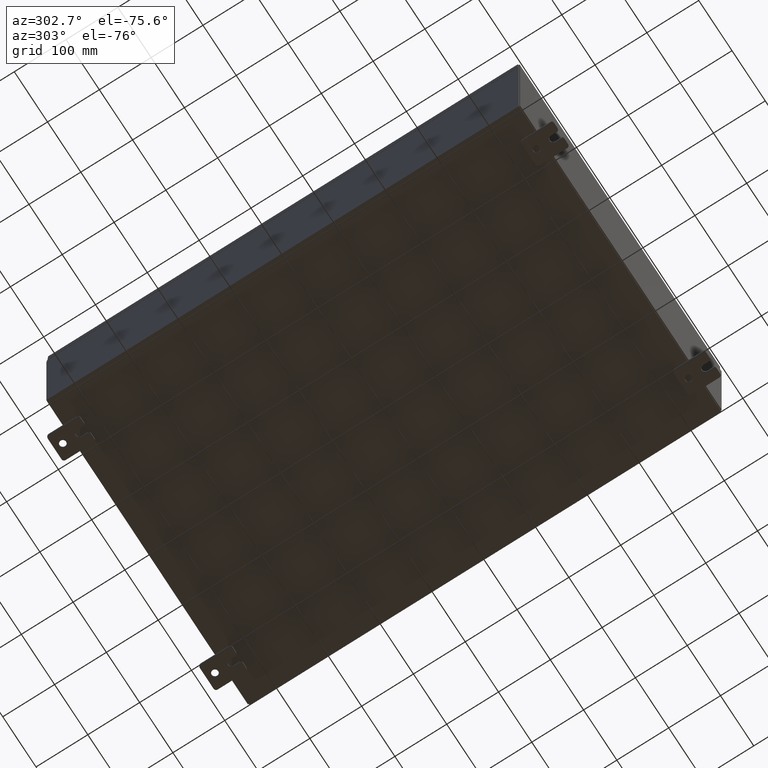
[diagram: clean part render]
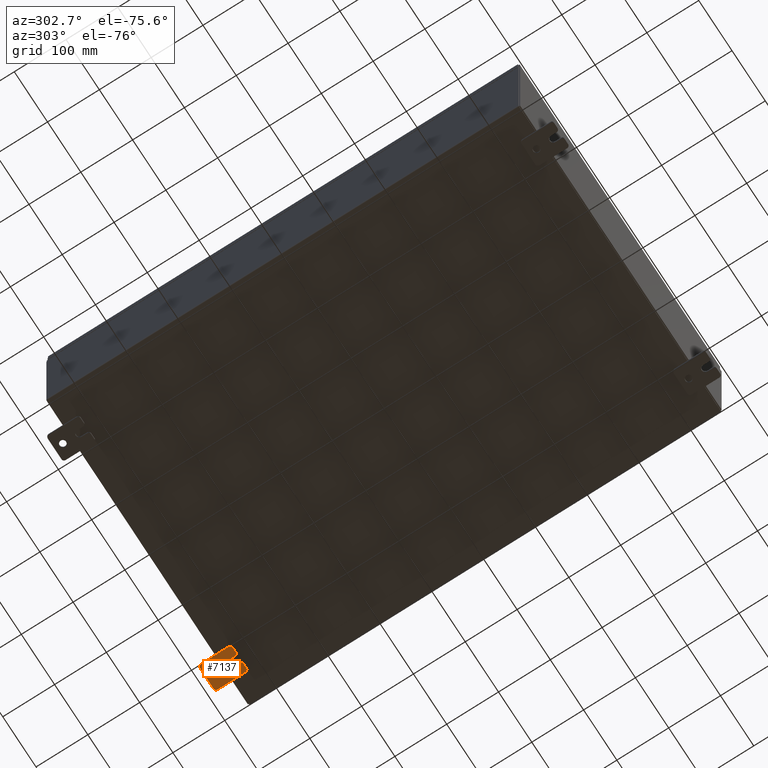
[diagram: same view with one face highlighted and labeled with its STEP entity id]
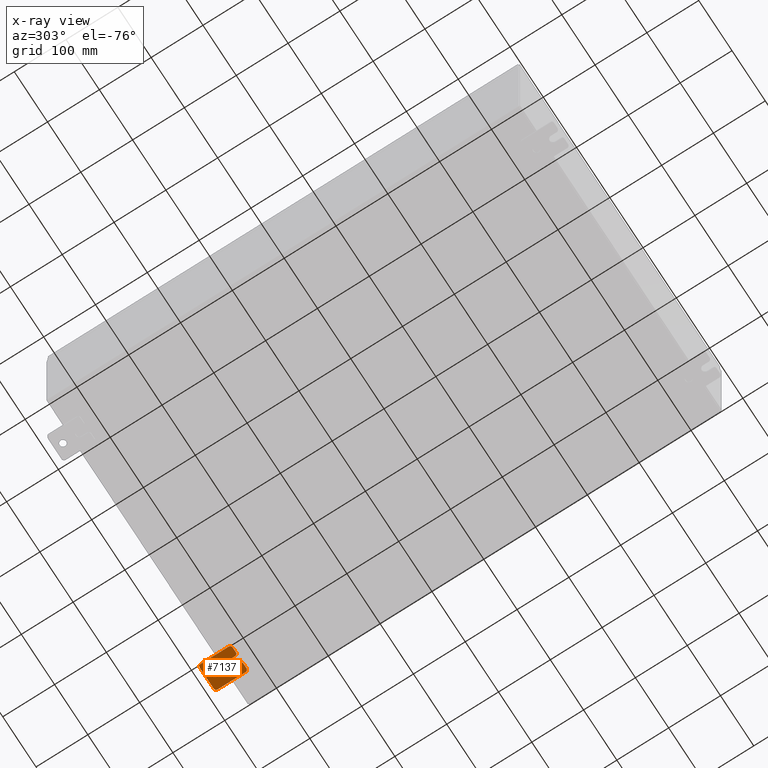
[diagram: x-ray of the same camera — body ghosted, the highlighted face saturated]
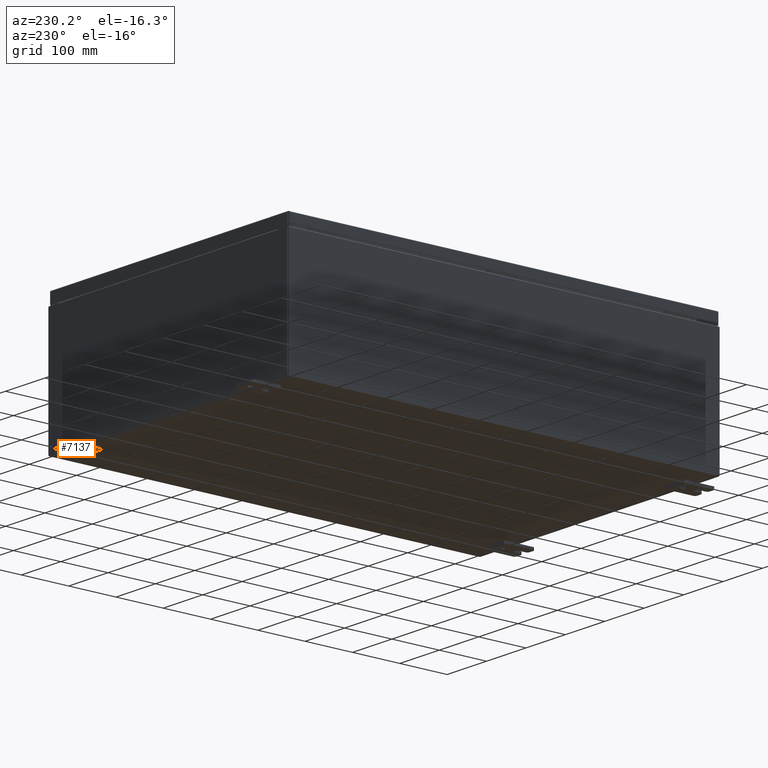
[diagram: same view with one face highlighted and labeled with its STEP entity id]
A machine part, auxiliary view. The second image highlights one B-rep face of the part: STEP entity #7137.
The next image is the same camera in x-ray: the body ghosted, the highlighted face saturated — about 0% of this face is hidden behind the body in this view.
A second angle (auxiliary view) of the same face is appended — the face is thin or edge-on in the first view.
In plain terms, the highlighted planar face has unit normal (0, 0, 1).
Its self-contained STEP definition (entity closure, byte-faithful):
#217 = DIRECTION ( 'NONE',  ( 6.556435184794182400E-016, 1.000000000000000000, 0.0000000000000000000 ) ) ;
#607 = DIRECTION ( 'NONE',  ( 1.000000000000000000, 0.0000000000000000000, -0.0000000000000000000 ) ) ;
#626 = VERTEX_POINT ( 'NONE', #44636 ) ;
#1798 = ORIENTED_EDGE ( 'NONE', *, *, #22774, .F. ) ;
#2174 = CARTESIAN_POINT ( 'NONE',  ( -0.1879999999999997800, -1.250000000000005300, -0.8100000000000047200 ) ) ;
#2263 = DIRECTION ( 'NONE',  ( -1.000000000000000000, -0.0000000000000000000, 0.0000000000000000000 ) ) ;
#2402 = EDGE_CURVE ( 'NONE', #27121, #22136, #28931, .T. ) ;
#2729 = ORIENTED_EDGE ( 'NONE', *, *, #52430, .F. ) ;
#2863 = VERTEX_POINT ( 'NONE', #41835 ) ;
#5062 = ORIENTED_EDGE ( 'NONE', *, *, #37063, .T. ) ;
#6317 = CARTESIAN_POINT ( 'NONE',  ( -0.1879999999999997800, 1.059999999999993600, -0.8100000000000089400 ) ) ;
#6627 = CARTESIAN_POINT ( 'NONE',  ( -0.1879999999999997800, 1.249999999999994700, -0.8100000000000092700 ) ) ;
#7137 = ADVANCED_FACE ( 'NONE', ( #42722, #44267 ), #30555, .F. ) ;
#7304 = CIRCLE ( 'NONE', #42403, 0.1900000000000011100 ) ;
#8931 = DIRECTION ( 'NONE',  ( 0.0000000000000000000, 1.000000000000000000, -1.639108796198558100E-015 ) ) ;
#9037 = AXIS2_PLACEMENT_3D ( 'NONE', #16358, #51111, #21371 ) ;
#9508 = VECTOR ( 'NONE', #29730, 39.37007874015748100 ) ;
#9675 = CARTESIAN_POINT ( 'NONE',  ( -0.1879999999999997800, 1.249999999999997600, 0.9999999999999951200 ) ) ;
#9783 = LINE ( 'NONE', #38781, #47941 ) ;
#10805 = EDGE_CURVE ( 'NONE', #13037, #27576, #47956, .T. ) ;
#10962 = EDGE_CURVE ( 'NONE', #27121, #19320, #43280, .T. ) ;
#11380 = DIRECTION ( 'NONE',  ( 0.0000000000000000000, 0.0000000000000000000, -1.000000000000000000 ) ) ;
#12677 = LINE ( 'NONE', #9675, #9508 ) ;
#13002 = CARTESIAN_POINT ( 'NONE',  ( -0.1879999999999997800, -1.060000000000003400, -0.4400000000000005000 ) ) ;
#13037 = VERTEX_POINT ( 'NONE', #39226 ) ;
#14175 = DIRECTION ( 'NONE',  ( 0.0000000000000000000, -1.639108796198553600E-015, -1.000000000000000000 ) ) ;
#15568 = EDGE_CURVE ( 'NONE', #626, #30605, #12677, .T. ) ;
#16358 = CARTESIAN_POINT ( 'NONE',  ( -0.1879999999999997800, -1.060000000000002100, 0.4400000000000016700 ) ) ;
#16526 = AXIS2_PLACEMENT_3D ( 'NONE', #13002, #47737, #17988 ) ;
#16765 = EDGE_CURVE ( 'NONE', #42605, #23969, #32182, .T. ) ;
#16906 = ORIENTED_EDGE ( 'NONE', *, *, #16765, .F. ) ;
#17520 = VERTEX_POINT ( 'NONE', #24576 ) ;
#17914 = CIRCLE ( 'NONE', #29296, 0.2499999999999999200 ) ;
#17988 = DIRECTION ( 'NONE',  ( 0.0000000000000000000, 0.0000000000000000000, -1.000000000000000000 ) ) ;
#19058 = EDGE_CURVE ( 'NONE', #27576, #42605, #24258, .T. ) ;
#19202 = DIRECTION ( 'NONE',  ( 1.000000000000000000, -0.0000000000000000000, -5.163192708025532000E-017 ) ) ;
#19320 = VERTEX_POINT ( 'NONE', #57489 ) ;
#19436 = CARTESIAN_POINT ( 'NONE',  ( -0.1880000000000010000, 0.6249999999999992200, -0.2499999999999999200 ) ) ;
#19855 = DIRECTION ( 'NONE',  ( -1.000000000000000000, -0.0000000000000000000, 0.0000000000000000000 ) ) ;
#19911 = DIRECTION ( 'NONE',  ( -1.000000000000000000, 6.523827964459549700E-016, 5.163192708025532000E-017 ) ) ;
#19969 = VECTOR ( 'NONE', #217, 39.37007874015748100 ) ;
#20112 = AXIS2_PLACEMENT_3D ( 'NONE', #49663, #19911, #54691 ) ;
#20428 = LINE ( 'NONE', #29178, #58577 ) ;
#20488 = VERTEX_POINT ( 'NONE', #2174 ) ;
#21368 = ORIENTED_EDGE ( 'NONE', *, *, #55863, .T. ) ;
#21371 = DIRECTION ( 'NONE',  ( 0.0000000000000000000, 0.0000000000000000000, -1.000000000000000000 ) ) ;
#22052 = CARTESIAN_POINT ( 'NONE',  ( -0.1879999999999997800, -1.060000000000001600, 0.8099999999999978300 ) ) ;
#22136 = VERTEX_POINT ( 'NONE', #33621 ) ;
#22774 = EDGE_CURVE ( 'NONE', #60226, #19320, #9783, .T. ) ;
#23236 = VECTOR ( 'NONE', #60317, 39.37007874015748100 ) ;
#23370 = AXIS2_PLACEMENT_3D ( 'NONE', #32190, #2263, #37172 ) ;
#23776 = ORIENTED_EDGE ( 'NONE', *, *, #15568, .F. ) ;
#23969 = VERTEX_POINT ( 'NONE', #47179 ) ;
#24124 = CARTESIAN_POINT ( 'NONE',  ( -0.1880000000000001900, -0.6249999999999992200, -0.2499999999999998600 ) ) ;
#24127 = DIRECTION ( 'NONE',  ( 0.0000000000000000000, 1.639108796198553600E-015, 1.000000000000000000 ) ) ;
#24258 = CIRCLE ( 'NONE', #20112, 0.2499999999999999200 ) ;
#24284 = CARTESIAN_POINT ( 'NONE',  ( -0.1879999999999997800, 1.249999999999994200, -1.000000000000010400 ) ) ;
#24576 = CARTESIAN_POINT ( 'NONE',  ( -0.1879999999999997800, -1.250000000000004700, -0.4400000000000002200 ) ) ;
#25369 = CARTESIAN_POINT ( 'NONE',  ( -0.1880000000000005800, -1.250000000000003800, 0.2500000000000005000 ) ) ;
#26884 = ORIENTED_EDGE ( 'NONE', *, *, #40287, .T. ) ;
#27072 = DIRECTION ( 'NONE',  ( 0.0000000000000000000, 7.189073667537492800E-016, -1.000000000000000000 ) ) ;
#27121 = VERTEX_POINT ( 'NONE', #6627 ) ;
#27576 = VERTEX_POINT ( 'NONE', #59982 ) ;
#28395 = CARTESIAN_POINT ( 'NONE',  ( -0.1880000000000010000, 0.6249999999999992200, 0.2499999999999999200 ) ) ;
#28931 = LINE ( 'NONE', #24284, #40603 ) ;
#28960 = DIRECTION ( 'NONE',  ( 1.000000000000000000, -0.0000000000000000000, -5.163192708025532000E-017 ) ) ;
#29178 = CARTESIAN_POINT ( 'NONE',  ( -0.1879999999999997800, -1.250000000000002200, 0.9999999999999992200 ) ) ;
#29296 = AXIS2_PLACEMENT_3D ( 'NONE', #48935, #19202, #53959 ) ;
#29730 = DIRECTION ( 'NONE',  ( 0.0000000000000000000, -1.000000000000000000, 1.639108796198558100E-015 ) ) ;
#30555 = PLANE ( 'NONE',  #50969 ) ;
#30565 = CARTESIAN_POINT ( 'NONE',  ( -0.1879999999999997800, -1.250000000000002200, 0.9999999999999992200 ) ) ;
#30605 = VERTEX_POINT ( 'NONE', #37809 ) ;
#32136 = EDGE_CURVE ( 'NONE', #34226, #38111, #17914, .T. ) ;
#32182 = LINE ( 'NONE', #39636, #45381 ) ;
#32190 = CARTESIAN_POINT ( 'NONE',  ( -0.1879999999999997800, -1.060000000000004100, -0.8100000000000050500 ) ) ;
#33621 = CARTESIAN_POINT ( 'NONE',  ( -0.1879999999999997800, 1.249999999999997300, 0.8099999999999935000 ) ) ;
#33714 = EDGE_CURVE ( 'NONE', #38111, #34226, #45789, .T. ) ;
#34226 = VERTEX_POINT ( 'NONE', #28395 ) ;
#35319 = CARTESIAN_POINT ( 'NONE',  ( -0.1879999999999997800, 0.0000000000000000000, 0.0000000000000000000 ) ) ;
#35540 = DIRECTION ( 'NONE',  ( -0.0000000000000000000, 0.0000000000000000000, -1.000000000000000000 ) ) ;
#36207 = CIRCLE ( 'NONE', #60422, 0.1900000000000011100 ) ;
#36442 = AXIS2_PLACEMENT_3D ( 'NONE', #58766, #28960, #63677 ) ;
#36465 = LINE ( 'NONE', #30565, #23236 ) ;
#37063 = EDGE_CURVE ( 'NONE', #17520, #23969, #59712, .T. ) ;
#37172 = DIRECTION ( 'NONE',  ( 0.0000000000000000000, 0.0000000000000000000, -1.000000000000000000 ) ) ;
#37809 = CARTESIAN_POINT ( 'NONE',  ( -0.1879999999999997800, -1.060000000000001200, 0.9999999999999988900 ) ) ;
#38111 = VERTEX_POINT ( 'NONE', #19436 ) ;
#38781 = CARTESIAN_POINT ( 'NONE',  ( -0.1879999999999997800, -1.250000000000005600, -1.000000000000006200 ) ) ;
#38932 = EDGE_LOOP ( 'NONE', ( #54756, #26884, #23776, #21368, #54839, #43127, #1798, #40109, #2729, #5062, #16906, #40233, #47184, #57334 ) ) ;
#39226 = CARTESIAN_POINT ( 'NONE',  ( -0.1880000000000004700, -1.060000000000002100, 0.2500000000000005000 ) ) ;
#39636 = CARTESIAN_POINT ( 'NONE',  ( -0.1880000000000001900, -0.6249999999999992200, -0.2499999999999993900 ) ) ;
#40109 = ORIENTED_EDGE ( 'NONE', *, *, #44224, .T. ) ;
#40233 = ORIENTED_EDGE ( 'NONE', *, *, #19058, .F. ) ;
#40287 = EDGE_CURVE ( 'NONE', #2863, #30605, #7304, .T. ) ;
#40603 = VECTOR ( 'NONE', #24127, 39.37007874015748100 ) ;
#41186 = DIRECTION ( 'NONE',  ( -1.000000000000000000, -0.0000000000000000000, 0.0000000000000000000 ) ) ;
#41835 = CARTESIAN_POINT ( 'NONE',  ( -0.1879999999999997800, -1.250000000000002400, 0.8099999999999980500 ) ) ;
#42403 = AXIS2_PLACEMENT_3D ( 'NONE', #22052, #56851, #27072 ) ;
#42605 = VERTEX_POINT ( 'NONE', #24124 ) ;
#42722 = FACE_BOUND ( 'NONE', #53489, .T. ) ;
#43127 = ORIENTED_EDGE ( 'NONE', *, *, #10962, .T. ) ;
#43220 = EDGE_CURVE ( 'NONE', #2863, #44605, #36465, .T. ) ;
#43280 = CIRCLE ( 'NONE', #49433, 0.1900000000000011100 ) ;
#44224 = EDGE_CURVE ( 'NONE', #60226, #20488, #62780, .T. ) ;
#44267 = FACE_OUTER_BOUND ( 'NONE', #38932, .T. ) ;
#44605 = VERTEX_POINT ( 'NONE', #63600 ) ;
#44636 = CARTESIAN_POINT ( 'NONE',  ( -0.1879999999999997800, 1.059999999999996500, 0.9999999999999953400 ) ) ;
#45381 = VECTOR ( 'NONE', #49385, 39.37007874015748100 ) ;
#45789 = CIRCLE ( 'NONE', #36442, 0.2499999999999999200 ) ;
#47179 = CARTESIAN_POINT ( 'NONE',  ( -0.1880000000000004700, -1.060000000000003400, -0.2499999999999994400 ) ) ;
#47184 = ORIENTED_EDGE ( 'NONE', *, *, #10805, .F. ) ;
#47737 = DIRECTION ( 'NONE',  ( -1.000000000000000000, -0.0000000000000000000, 0.0000000000000000000 ) ) ;
#47941 = VECTOR ( 'NONE', #8931, 39.37007874015748100 ) ;
#47956 = LINE ( 'NONE', #25369, #19969 ) ;
#48935 = CARTESIAN_POINT ( 'NONE',  ( -0.1880000000000010000, 0.6249999999999992200, -7.703811342100550500E-020 ) ) ;
#49385 = DIRECTION ( 'NONE',  ( -6.556435184794182400E-016, -1.000000000000000000, -1.639108796198545600E-016 ) ) ;
#49433 = AXIS2_PLACEMENT_3D ( 'NONE', #6317, #41186, #11380 ) ;
#49608 = CARTESIAN_POINT ( 'NONE',  ( -0.1879999999999997800, 1.059999999999996300, 0.8099999999999938400 ) ) ;
#49663 = CARTESIAN_POINT ( 'NONE',  ( -0.1880000000000001900, -0.6249999999999992200, 6.829619984160658000E-017 ) ) ;
#50969 = AXIS2_PLACEMENT_3D ( 'NONE', #35319, #607, #35540 ) ;
#51111 = DIRECTION ( 'NONE',  ( -1.000000000000000000, -0.0000000000000000000, 0.0000000000000000000 ) ) ;
#51973 = CARTESIAN_POINT ( 'NONE',  ( -0.1879999999999997800, -1.060000000000004500, -1.000000000000006400 ) ) ;
#52370 = ORIENTED_EDGE ( 'NONE', *, *, #33714, .T. ) ;
#52430 = EDGE_CURVE ( 'NONE', #17520, #20488, #20428, .T. ) ;
#53198 = EDGE_CURVE ( 'NONE', #13037, #44605, #60058, .T. ) ;
#53489 = EDGE_LOOP ( 'NONE', ( #52370, #61470 ) ) ;
#53959 = DIRECTION ( 'NONE',  ( 0.0000000000000000000, 0.0000000000000000000, -1.000000000000000000 ) ) ;
#54627 = DIRECTION ( 'NONE',  ( 0.0000000000000000000, 0.0000000000000000000, -1.000000000000000000 ) ) ;
#54691 = DIRECTION ( 'NONE',  ( -6.829619984160660000E-016, -1.000000000000000000, 0.0000000000000000000 ) ) ;
#54756 = ORIENTED_EDGE ( 'NONE', *, *, #43220, .F. ) ;
#54839 = ORIENTED_EDGE ( 'NONE', *, *, #2402, .F. ) ;
#55863 = EDGE_CURVE ( 'NONE', #626, #22136, #36207, .T. ) ;
#56851 = DIRECTION ( 'NONE',  ( -1.000000000000000000, -0.0000000000000000000, 0.0000000000000000000 ) ) ;
#57334 = ORIENTED_EDGE ( 'NONE', *, *, #53198, .T. ) ;
#57489 = CARTESIAN_POINT ( 'NONE',  ( -0.1879999999999997800, 1.059999999999993400, -1.000000000000010000 ) ) ;
#58577 = VECTOR ( 'NONE', #14175, 39.37007874015748100 ) ;
#58766 = CARTESIAN_POINT ( 'NONE',  ( -0.1880000000000010000, 0.6249999999999992200, -7.703811342100550500E-020 ) ) ;
#59712 = CIRCLE ( 'NONE', #16526, 0.1900000000000011100 ) ;
#59982 = CARTESIAN_POINT ( 'NONE',  ( -0.1880000000000001900, -0.6249999999999992200, 0.2500000000000005000 ) ) ;
#60058 = CIRCLE ( 'NONE', #9037, 0.1900000000000011400 ) ;
#60226 = VERTEX_POINT ( 'NONE', #51973 ) ;
#60317 = DIRECTION ( 'NONE',  ( 0.0000000000000000000, -1.639108796198553600E-015, -1.000000000000000000 ) ) ;
#60422 = AXIS2_PLACEMENT_3D ( 'NONE', #49608, #19855, #54627 ) ;
#61470 = ORIENTED_EDGE ( 'NONE', *, *, #32136, .T. ) ;
#62780 = CIRCLE ( 'NONE', #23370, 0.1900000000000011100 ) ;
#63600 = CARTESIAN_POINT ( 'NONE',  ( -0.1879999999999997800, -1.250000000000003100, 0.4400000000000020000 ) ) ;
#63677 = DIRECTION ( 'NONE',  ( 0.0000000000000000000, 0.0000000000000000000, -1.000000000000000000 ) ) ;